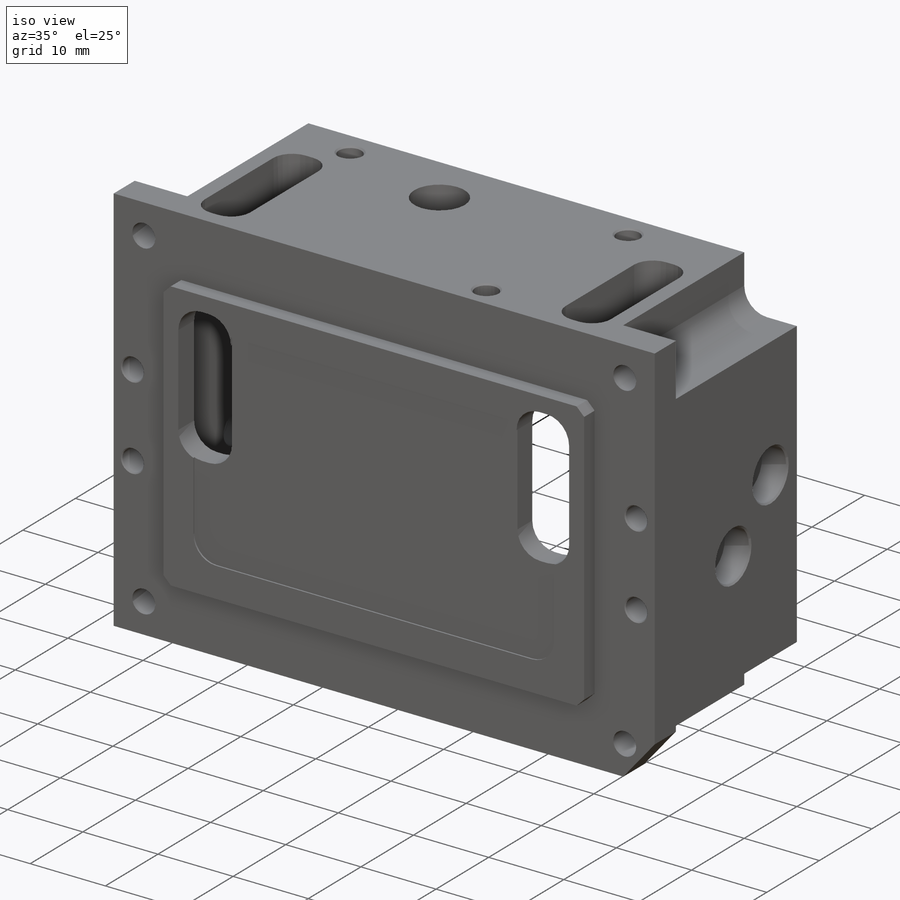
[diagram: iso view]
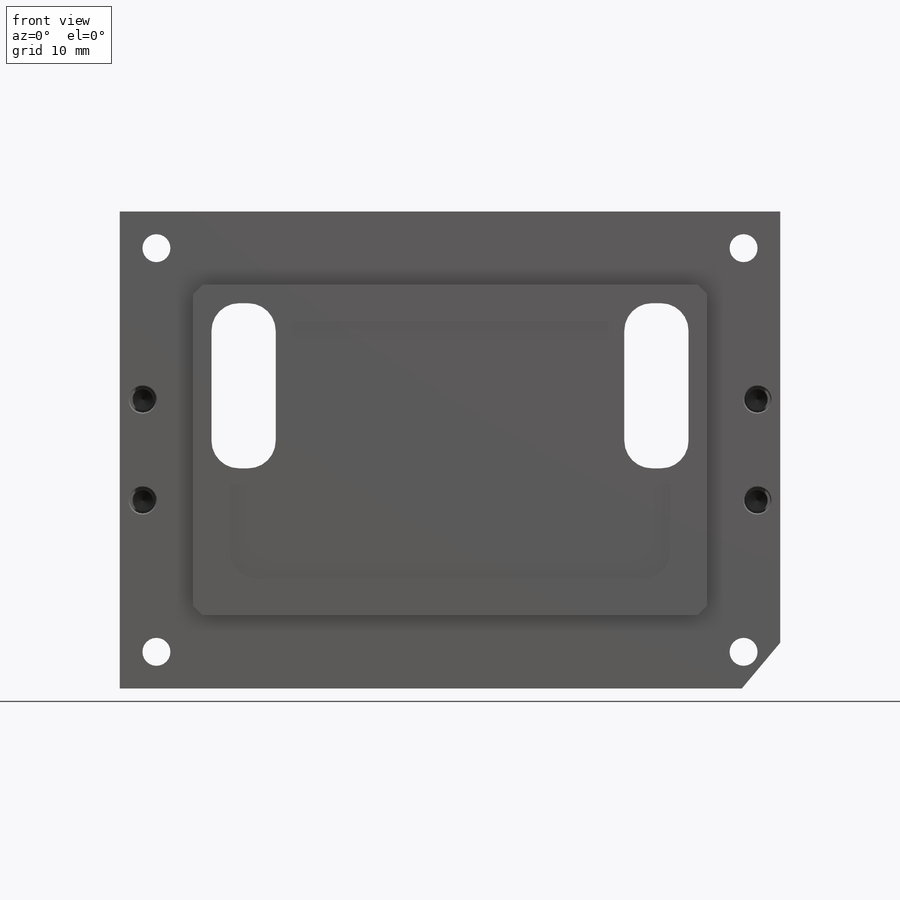
[diagram: front view]
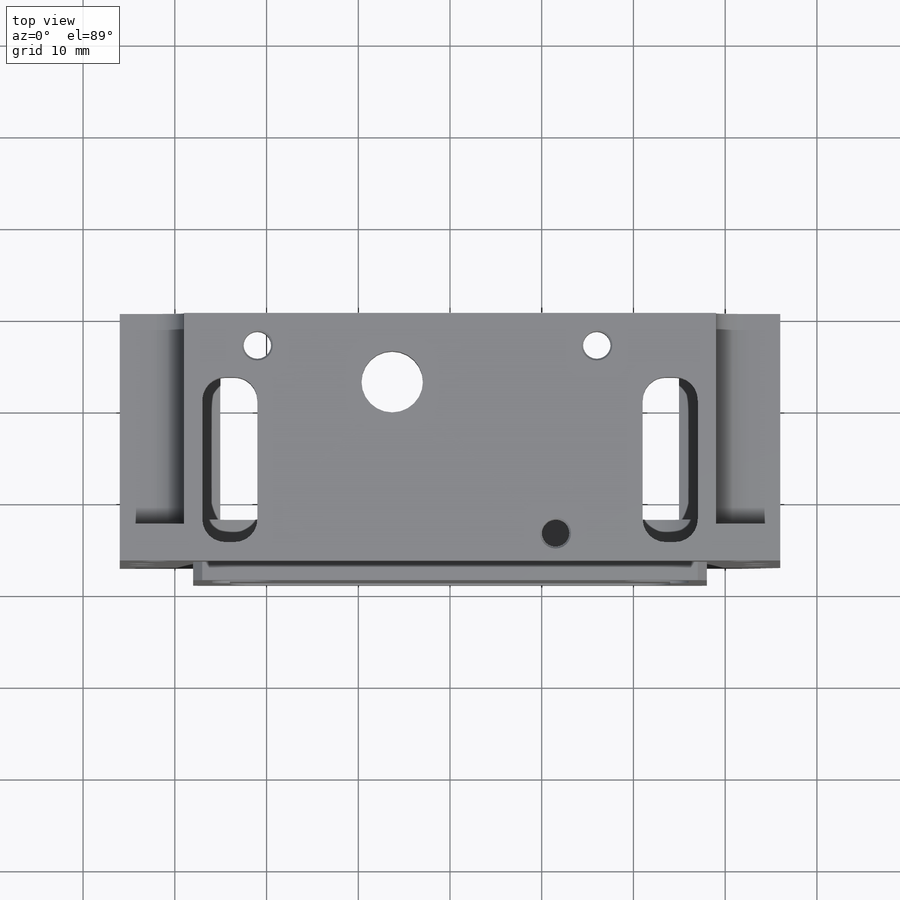
[diagram: top view]
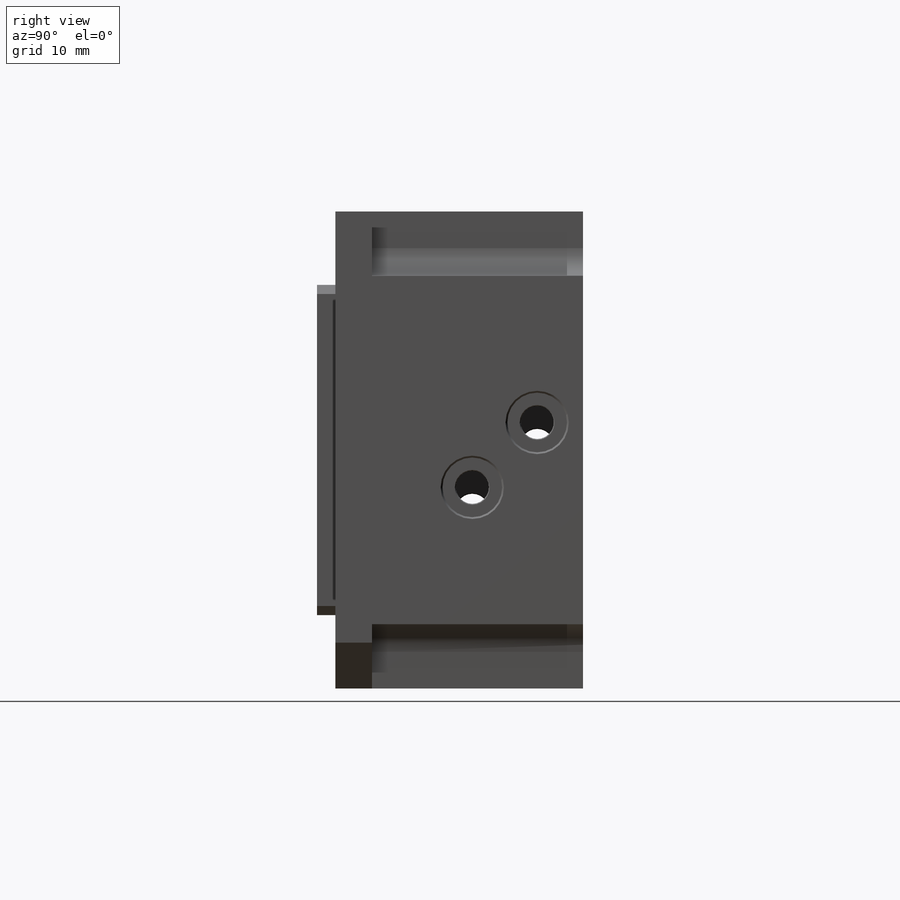
[diagram: right view]
SOLIDWORKS PART (.sldprt)
format: sldprt  version: not decoded by parser v0  size: 1,056,256 bytes
history: native  units: mm
features: chamfer x37, sketch x26, cut_extrude x13, hole x6, plane x5, material x1, extrude x1 (+12 scaffold rows collapsed)
feature tree (101):
  scaffold x12  (default folders/planes/origin — collapsed)
  material  "2024-T4"
  plane  "Спереди"
  plane  "Сверху"
  plane  "Справа"
  sketch  "Эскиз1"  dims[c1.D5=22.0mm c1.D6=22.0mm c1.D7=19.0mm c1.D1=72.0mm c1.D2=52.0mm c1.D3=26.0mm c1.D4=36.0mm c2.D7=19.0mm c2.D8=19.0mm c2.D9=8.0mm c2.D10=8.0mm]
  extrude  "Вытянуть1"  Depth=29mm
  hole  "Цековка для  винта с внутренним шестигранником #41"  [1 undecoded]
  sketch  "Эскиз14"  dims[D1=64.0mm D2=44.0mm D3=22.0mm D4=32.0mm]
  sketch  "Эскиз13"  dims[hole-wizard template sketch: 41 standard entries collapsed; hole parameters kept: c12.Диаметр сквозного отверстия=3.048mm c12.Глубина сквозного отверстия=29.0mm c12.Диаметр цековки=5.08mm c12.Глубина цековки=17.5768mm]
  sketch  "Эскиз2"  dims[c1.D5=8.0mm c1.D1=31.0mm c1.D2=31.0mm c1.D3=20.0mm c1.D4=20.0mm c2.D1=30.5mm c2.D2=30.5mm c2.D6=25.0mm c2.D7=25.0mm c2.D8=27.0mm c2.D9=1.0mm c2.D10=1.0mm]
  cut_extrude  "Вырез-Вытянуть1"  Depth=7mm
  cut_extrude  "Вырез-Вытянуть15"  [1 undecoded]
  sketch  "Эскиз2<3>"  dims[D1=3.0mm]
  sketch  "Эскиз3"  dims[c1.D5=3.9mm c1.D6=3.9mm c1.D8=3.9mm c1.D12=2.5mm c1.D1=21.0mm c1.D2=10.0mm c1.D3=18.0mm c1.D4=6.0mm c1.D7=10.0mm c1.D9=6.0mm c1.D10=18.0mm c1.D11=21.0mm c2.D2=2.0mm c2.D7=4.0mm]
  cut_extrude  "Вырез-Вытянуть2"  Depth=12mm
  hole  "Цековка для винта с внутренним шестигранником M31"  [1 undecoded]
  sketch  "Эскиз9"  dims[D1=24.0mm D2=23.0mm D3=7.07mm D4=7.07mm]
  sketch  "Эскиз8"  dims[hole-wizard template sketch: 28 standard entries collapsed; hole parameters kept: c8.Диаметр сквозного отверстия=3.6mm c8.Глубина сквозного отверстия=5.5mm c8.Диаметр цековки=6.5mm c8.Глубина цековки=3.4mm c8.Диаметр передней зенковки=6.9mm c8.D6=~4.444873mm c8.Угол передней зенковки=90.0deg c8.Диаметр средней зенковки=3.8mm c8.D8=~4.444873mm c8.Угол средней зенковки=90.0deg c8.Диаметр задней зенковки=3.8mm c8.D10=~8.980256mm c8.Угол задней зенковки=90.0deg]
  hole  "Цековка для винта с внутренним шестигранником M32"  [1 undecoded]
  sketch  "Эскиз12"  dims[D1=24.0mm D2=7.07mm D3=7.07mm D4=25.5mm]
  sketch  "Эскиз11"  dims[hole-wizard template sketch: 28 standard entries collapsed; hole parameters kept: c8.Диаметр сквозного отверстия=3.6mm c8.Глубина сквозного отверстия=5.5mm c8.Диаметр цековки=6.5mm c8.Глубина цековки=3.4mm c8.Диаметр передней зенковки=6.9mm c8.D6=~4.444873mm c8.Угол передней зенковки=90.0deg c8.Диаметр средней зенковки=3.8mm c8.D8=~4.444873mm c8.Угол средней зенковки=90.0deg c8.Диаметр задней зенковки=3.8mm c8.D10=~8.980256mm c8.Угол задней зенковки=90.0deg]
  hole  "#4-40 Tapped Hole4"  [1 undecoded]
  sketch  "Эскиз16"  dims[D1=14.0mm D2=18.0mm D3=2.0mm D4=2.0mm]
  sketch  "Эскиз15"  dims[hole-wizard template sketch: 26 standard entries collapsed; hole parameters kept: c8.Диаметр сверла=2.2606mm c8.Глубина сверла=8.87mm c8.Диаметр резьбы=2.8448mm c8.Глубина резьбы=5.69mm c8.Диаметр передней зенковки=3.302mm c8.D6=~4.399409mm c8.Угол передней зенковки=90.0deg c8.D7=~14.816244mm c8.Угол заточки сверла=118.0deg]
  plane  "Плоскость1"
  sketch  "Эскиз17"  dims[c1.D1=2.0mm c1.D2=2.0mm c1.D4=2.0mm c1.D6=2.0mm c2.D1=2.0mm c2.D2=12.0mm c2.D3=1.8mm c2.D5=1.8mm c2.D6=12.0mm]
  cut_extrude  "Вырез-Вытянуть5"  Depth=10mm
  hole  "M3"  [1 undecoded]
  sketch  "Эскиз19"  dims[c1.D1=31.0mm c1.D2=9.0mm c1.D3=3.0mm c1.D4=20.0mm c1.D5=26.5mm c1.D6=19.0mm c2.D5=24.5mm c2.D6=26.0mm c2.D1=6.0mm c2.D2=37.0mm c3.D1=5.0mm c3.D3=20.5mm]
  sketch  "Эскиз18"  dims[hole-wizard template sketch: 27 standard entries collapsed; hole parameters kept: c8.Глубина сверла=10.0mm c8.Диаметр резьбы=3.0mm c8.Глубина резьбы=8.0mm c8.Диаметр передней зенковки=3.4mm c8.D6=~4.399409mm c8.Угол передней зенковки=90.0deg c8.D7=~14.816244mm c8.Угол заточки сверла=118.0deg]
  sketch  "Эскиз22"  dims[c1.D7=3.0mm c1.D1=7.0mm c1.D2=18.0mm c1.D3=19.0mm c1.D4=38.0mm c1.D5=3.0mm c1.D6=7.0mm c2.D5=28.0mm c2.D3=16.0mm c2.D8=19.0mm c3.D3=19.0mm]
  cut_extrude  "Вырез-Вытянуть6"  [1 undecoded]
  plane  "Плоскость2"
  sketch  "Эскиз24"  dims[D1=3.0mm D2=13.0mm D3=7.0mm D4=38.0mm D5=7.0mm D6=7.0mm D7=9.0mm]
  cut_extrude  "Вырез-Вытянуть7"  Depth=49mm
  sketch  "Эскиз25"  dims[D1=6.0mm D2=15.0mm D3=4.0mm]
  cut_extrude  "Вырез-Вытянуть8"  [1 undecoded]
  sketch  "Эскиз29"  dims[c1.D1=4.0mm c1.D3=3.0mm c1.D2=7.7mm c2.D3=7.7mm c2.D1=7.0mm c2.D2=7.0mm]
  cut_extrude  "Вырез-Вытянуть10"  Depth=6mm
  chamfer  "Фаска1"  Distance=5mm Angle=40deg
  sketch  "Эскиз26"  dims[D1=3.0mm D2=8.5mm D3=18.0mm]
  cut_extrude  "Вырез-Вытянуть9"  Depth=2.5mm
  sketch  "Эскиз30"  dims[D6=3.0mm D1=21.0mm D2=14.0mm D3=14.0mm D4=24.0mm D5=15.0mm]
  cut_extrude  "Вырез-Вытянуть16"  Depth=0.2mm
  sketch  "Эскиз31"  dims[D1=36.0mm D2=56.0mm D5=1.0mm D6=1.0mm D7=1.0mm D8=1.0mm]
  cut_extrude  "Вырез-Вытянуть18"  Depth=2mm
  hole  "2 Отверстие #4-40"  [1 undecoded]
  sketch  "Эскиз28"  dims[D1=11.0mm D2=20.5mm D3=2.5mm D4=2.5mm]
  sketch  "Эскиз27"  dims[hole-wizard template sketch: 26 standard entries collapsed; hole parameters kept: c8.Диаметр сверла=2.2606mm c8.Глубина сверла=8.86mm c8.Диаметр резьбы=2.8448mm c8.Глубина резьбы=5.69mm c8.Диаметр передней зенковки=3.0988mm c8.D6=~4.399409mm c8.Угол передней зенковки=90.0deg c8.D7=~14.816244mm c8.Угол заточки сверла=118.0deg c8.Material_Int=0.0mm c8.Material_Ext=0.0mm c8.Surface=0.0mm c9.Material_Int=0.0mm c9.Material_Ext=0.0mm]
  chamfer  "OptisFaceAttribut_1"  Distance=0mm Surface=0mm Material_Int=0mm Material_Ext=0mm
  chamfer  "OptisFaceAttribut_2"  Distance=0mm Surface=0mm Material_Int=0mm Material_Ext=0mm
  chamfer  "OptisFaceAttribut_3"  Distance=0mm Surface=0mm Material_Int=0mm Material_Ext=0mm
  chamfer  "OptisFaceAttribut_4"  Distance=0mm Surface=0mm Material_Int=0mm Material_Ext=0mm
  chamfer  "OptisFaceAttribut_5"  Distance=0mm Surface=0mm Material_Int=0mm Material_Ext=0mm
  chamfer  "OptisFaceAttribut_6"  Distance=0mm Surface=0mm Material_Int=0mm Material_Ext=0mm
  chamfer  "OptisFaceAttribut_7"  Distance=0mm Surface=0mm Material_Int=0mm Material_Ext=0mm
  chamfer  "OptisFaceAttribut_8"  Distance=0mm Surface=0mm Material_Int=0mm Material_Ext=0mm
  chamfer  "OptisFaceAttribut_9"  Distance=0mm Surface=0mm Material_Int=0mm Material_Ext=0mm
  chamfer  "OptisFaceAttribut_10"  Distance=0mm Surface=0mm Material_Int=0mm Material_Ext=0mm
  chamfer  "OptisFaceAttribut_11"  Distance=0mm Surface=0mm Material_Int=0mm Material_Ext=0mm
  chamfer  "OptisFaceAttribut_12"  Distance=0mm Surface=0mm Material_Int=0mm Material_Ext=0mm
  chamfer  "OptisFaceAttribut_13"  Distance=0mm Surface=0mm Material_Int=0mm Material_Ext=0mm
  chamfer  "OptisFaceAttribut_14"  Distance=0mm Surface=0mm Material_Int=0mm Material_Ext=0mm
  chamfer  "OptisFaceAttribut_15"  Distance=0mm Surface=0mm Material_Int=0mm Material_Ext=0mm
  chamfer  "OptisFaceAttribut_16"  Distance=0mm Surface=0mm Material_Int=0mm Material_Ext=0mm
  chamfer  "OptisFaceAttribut_17"  Distance=0mm Surface=0mm Material_Int=0mm Material_Ext=0mm
  chamfer  "OptisFaceAttribut_18"  Distance=0mm Surface=0mm Material_Int=0mm Material_Ext=0mm
  chamfer  "OptisFaceAttribut_19"  Distance=0mm Surface=0mm Material_Int=0mm Material_Ext=0mm
  chamfer  "OptisFaceAttribut_20"  Distance=0mm Surface=0mm Material_Int=0mm Material_Ext=0mm
  chamfer  "OptisFaceAttribut_21"  Distance=0mm Surface=0mm Material_Int=0mm Material_Ext=0mm
  chamfer  "OptisFaceAttribut_22"  Distance=0mm Surface=0mm Material_Int=0mm Material_Ext=0mm
  chamfer  "OptisFaceAttribut_23"  Distance=0mm Surface=0mm Material_Int=0mm Material_Ext=0mm
  chamfer  "OptisFaceAttribut_24"  Distance=0mm Surface=0mm Material_Int=0mm Material_Ext=0mm
  chamfer  "OptisFaceAttribut_25"  Distance=0mm Surface=0mm Material_Int=0mm Material_Ext=0mm
  chamfer  "OptisFaceAttribut_26"  Distance=0mm Surface=0mm Material_Int=0mm Material_Ext=0mm
  chamfer  "OptisFaceAttribut_27"  Distance=0mm Surface=0mm Material_Int=0mm Material_Ext=0mm
  chamfer  "OptisFaceAttribut_28"  Distance=0mm Surface=0mm Material_Int=0mm Material_Ext=0mm
  chamfer  "OptisFaceAttribut_29"  Distance=0mm Surface=0mm Material_Int=0mm Material_Ext=0mm
  chamfer  "OptisFaceAttribut_30"  Distance=0mm Surface=0mm Material_Int=0mm Material_Ext=0mm
  chamfer  "OptisFaceAttribut_31"  Distance=0mm Surface=0mm Material_Int=0mm Material_Ext=0mm
  chamfer  "OptisFaceAttribut_32"  Distance=0mm Surface=0mm Material_Int=0mm Material_Ext=0mm
  chamfer  "OptisFaceAttribut_33"  Distance=0mm Surface=0mm Material_Int=0mm Material_Ext=0mm
  chamfer  "OptisFaceAttribut_34"  Distance=0mm Surface=0mm Material_Int=0mm Material_Ext=0mm
  chamfer  "OptisFaceAttribut_35"  Distance=0mm Surface=0mm Material_Int=0mm Material_Ext=0mm
  chamfer  "OptisFaceAttribut_36"  Distance=0mm Surface=0mm Material_Int=0mm Material_Ext=0mm
  sketch  "Эскиз32"  dims[D1=50.0mm]
  cut_extrude  "Вырез-Вытянуть19"  [1 undecoded]
  sketch  "Эскиз33"  dims[c1.D1=6.7mm c1.D2=6.7mm c1.D3=6.7mm c2.D2=7.5mm c2.D3=42.3mm]
  cut_extrude  "Вырез-Вытянуть20"  [1 undecoded]
decode coverage: 72 of 83 modeling features carry decoded parameters
note: ~ marks probable driven/reference dimensions
note: 11 parameter values undecoded
summary: no parameter record found for 11 features
note: suppression state not decoded; provenance and decode notes live in map.json
